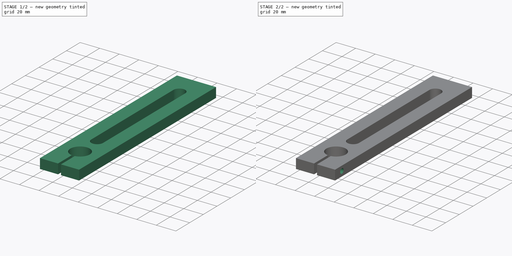
[diagram: build sequence overview — one tinted view per stage of 2, left to right]
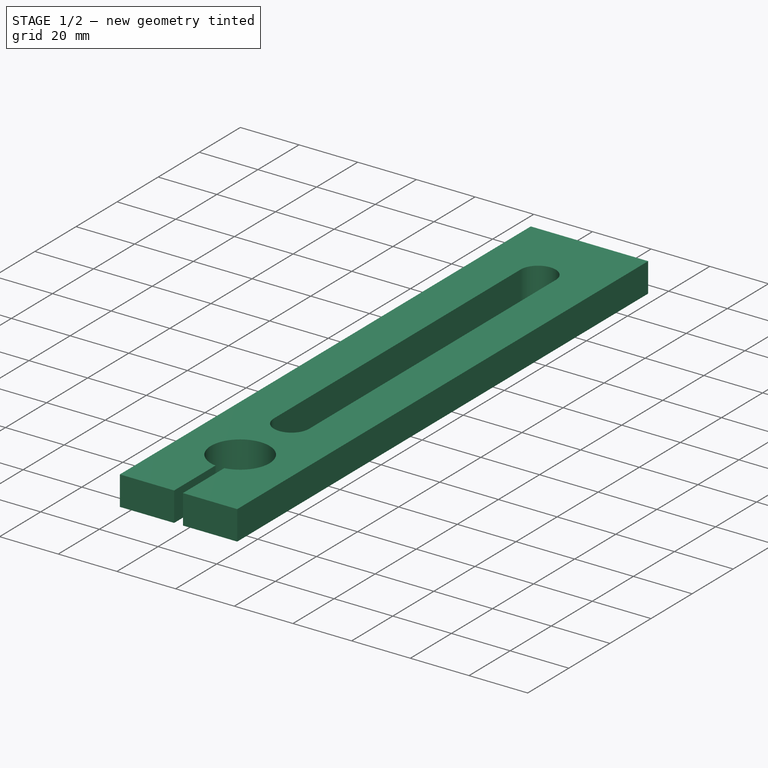
[diagram: stage 1 of 2 — iso view after this stage's code; geometry added in this stage tinted green]
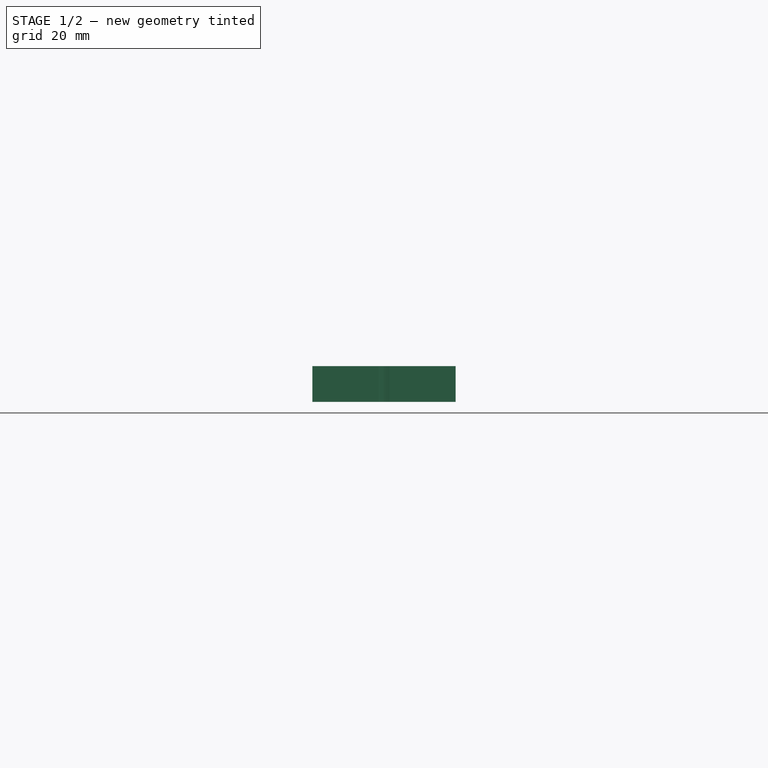
[diagram: stage 1 of 2 — front view after this stage's code; geometry added in this stage tinted green]
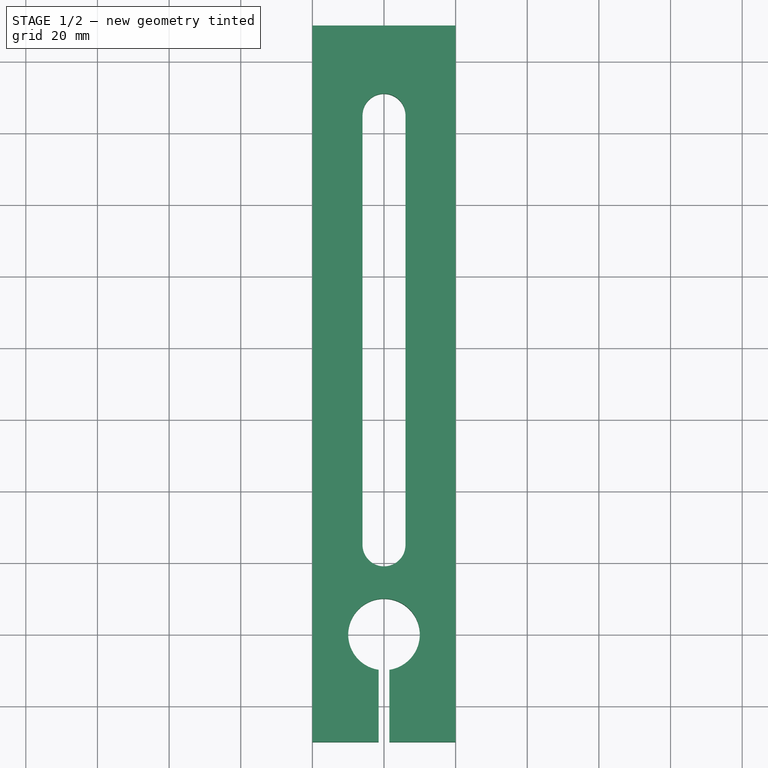
[diagram: stage 1 of 2 — top view after this stage's code; geometry added in this stage tinted green]
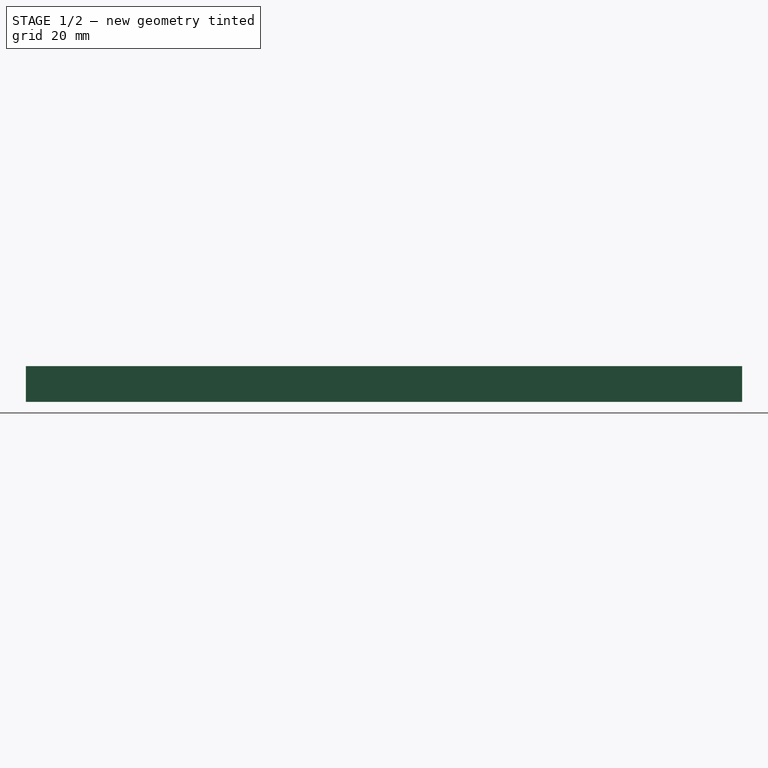
[diagram: stage 1 of 2 — right view after this stage's code; geometry added in this stage tinted green]
FCSTD DOCUMENT  (FreeCAD 0.21R33771 (Git))
Label: StaffaRegolabileIngranaggiFilettatura
License: All rights reserved
LicenseURL: http://en.wikipedia.org/wiki/All_rights_reserved
objects: Sketcher::SketchObject×2, PartDesign::Pad×1, PartDesign::Pocket×1, PartDesign::Body×1
note: 7 computed .brp shape members not serialized (recipe doc carries the construction recipe); baked Part::Feature solids carry a one-line shape summary decoded from their .brp

FEATURE [Sketcher::SketchObject] Sketch
  FullyConstrained = true
  MapMode = 5
  Support = -> [XY_Plane]
  sketch-geometry (12):
    g0: LineSegment StartX=-20 StartY=170 StartZ=0 EndX=20 EndY=170 EndZ=0
    g1: LineSegment StartX=20 StartY=170 StartZ=0 EndX=20 EndY=-30 EndZ=0
    g2: LineSegment StartX=20 StartY=-30 StartZ=0 EndX=1.5 EndY=-30 EndZ=0
    g3: LineSegment StartX=-20 StartY=-30 StartZ=0 EndX=-20 EndY=170 EndZ=0
    g4: ArcOfCircle CenterX=0 CenterY=0 CenterZ=0 NormalX=0 NormalY=0 NormalZ=1 AngleXU=0 Radius=10 StartAngle=4.86296 EndAngle=10.845
    g5: LineSegment StartX=-1.5 StartY=-9.88686 StartZ=0 EndX=-1.5 EndY=-30 EndZ=0
    g6: LineSegment StartX=1.5 StartY=-9.88686 StartZ=0 EndX=1.5 EndY=-30 EndZ=0
    g7: LineSegment StartX=-1.5 StartY=-30 StartZ=0 EndX=-20 EndY=-30 EndZ=0
    g8: ArcOfCircle CenterX=0 CenterY=145 CenterZ=0 NormalX=0 NormalY=0 NormalZ=1 AngleXU=0 Radius=6 StartAngle=6.28319 EndAngle=9.42478
    g9: ArcOfCircle CenterX=0 CenterY=25 CenterZ=0 NormalX=0 NormalY=0 NormalZ=1 AngleXU=0 Radius=6 StartAngle=3.14159 EndAngle=6.28319
    g10: LineSegment StartX=6 StartY=25 StartZ=0 EndX=6 EndY=145 EndZ=0
    g11: LineSegment StartX=-6 StartY=25 StartZ=0 EndX=-6 EndY=145 EndZ=0
  constraints (35):
    c: Coincident(g0,g1)
    c: Coincident(g1,g2)
    c: Coincident(g7,g3)
    c: Coincident(g3,g0)
    c: Horizontal(g0)
    c: Vertical(g1)
    c: Vertical(g3)
    c: DistanceX(g7,g2) = 40
    c: DistanceY(g3,g3) = 200
    c: Horizontal(g2)
    c: DistanceX(g7,g-1) = 20
    c: DistanceY(g7,g-1) = 30
    c: Coincident(g4,g-1)
    c: Radius(g4) = 10
    c: Vertical(g5)
    c: Vertical(g6)
    c: Coincident(g6,g4)
    c: Coincident(g5,g4)
    c: Coincident(g6,g2)
    c: Coincident(g5,g7)
    c: PointOnObject(g8,g-2)
    c: PointOnObject(g9,g-2)
    c: Vertical(g10)
    c: Vertical(g11)
    c: Radius(g9) = 6
    c: Tangent(g9,g10) = -1.5708
    c: Tangent(g9,g11) = 1.5708
    c: Coincident(g10,g8)
    c: Tangent(g11,g8) = 1.5708
    c: DistanceY(g9,g8) = 120
    c: DistanceY(g4,g9) = 25
    c: Equal(g7,g2)
    c: Equal(g6,g5)
    c: Horizontal(g7)
    c: DistanceX(g5,g2) = 3
FEATURE [PartDesign::Pad] Pad
  Direction = (0,0,1)
  Length = 10
  Length2 = 10
  Profile = -> Sketch
  ReferenceAxis = -> Sketch [N_Axis]
  Type = 0
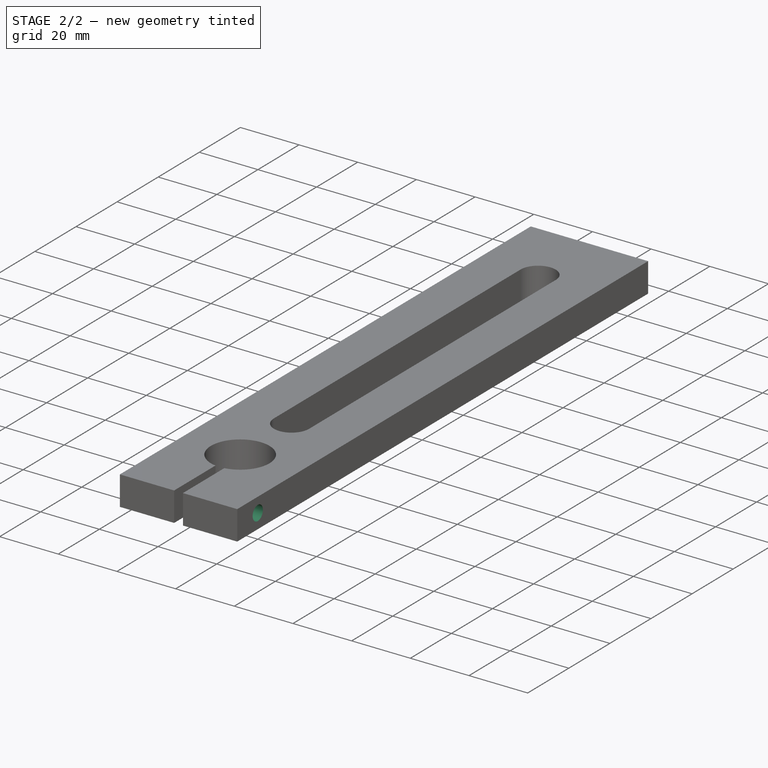
[diagram: stage 2 of 2 — iso view after this stage's code; geometry added in this stage tinted green]
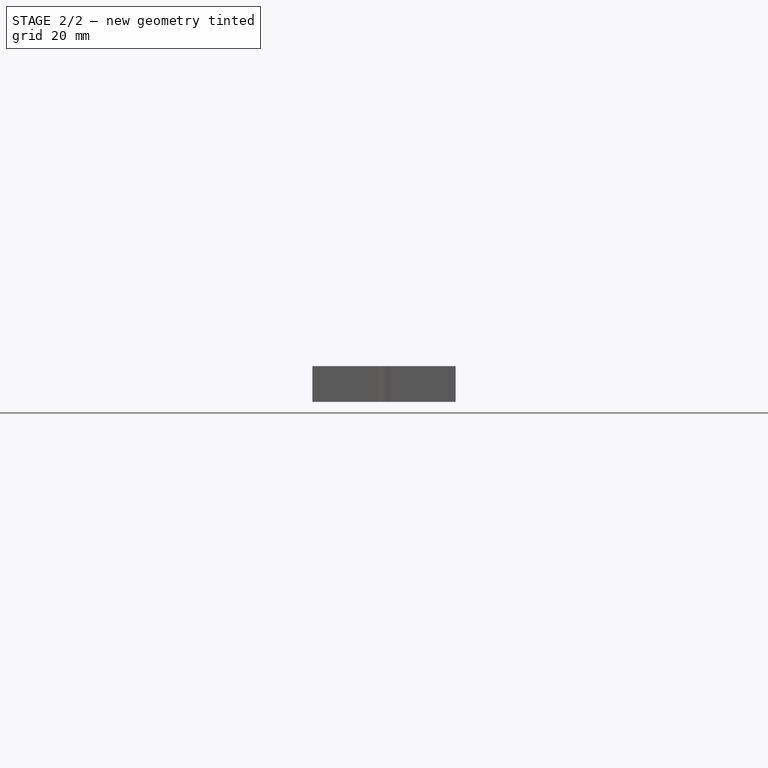
[diagram: stage 2 of 2 — front view after this stage's code; geometry added in this stage tinted green]
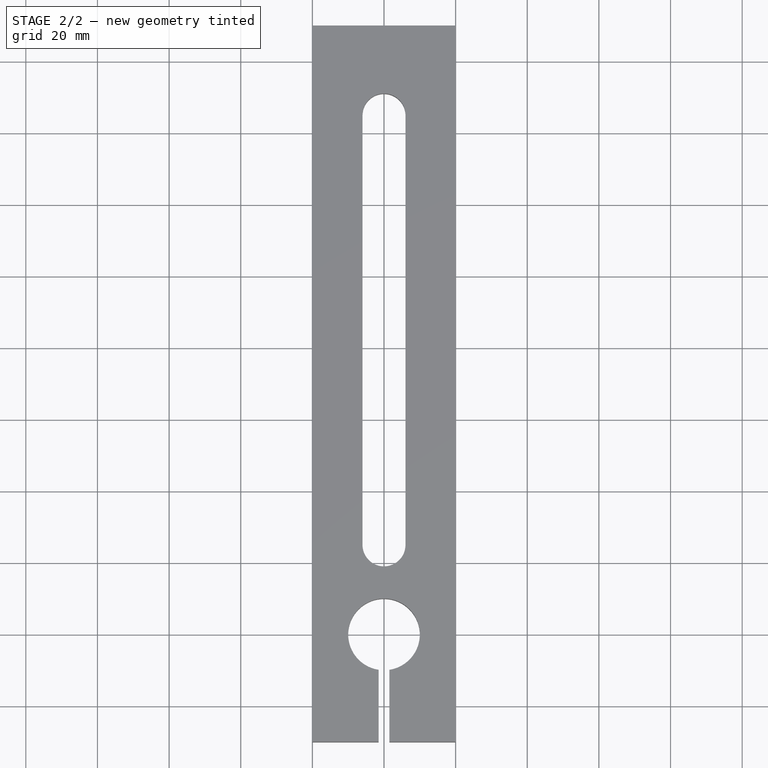
[diagram: stage 2 of 2 — top view after this stage's code; geometry added in this stage tinted green]
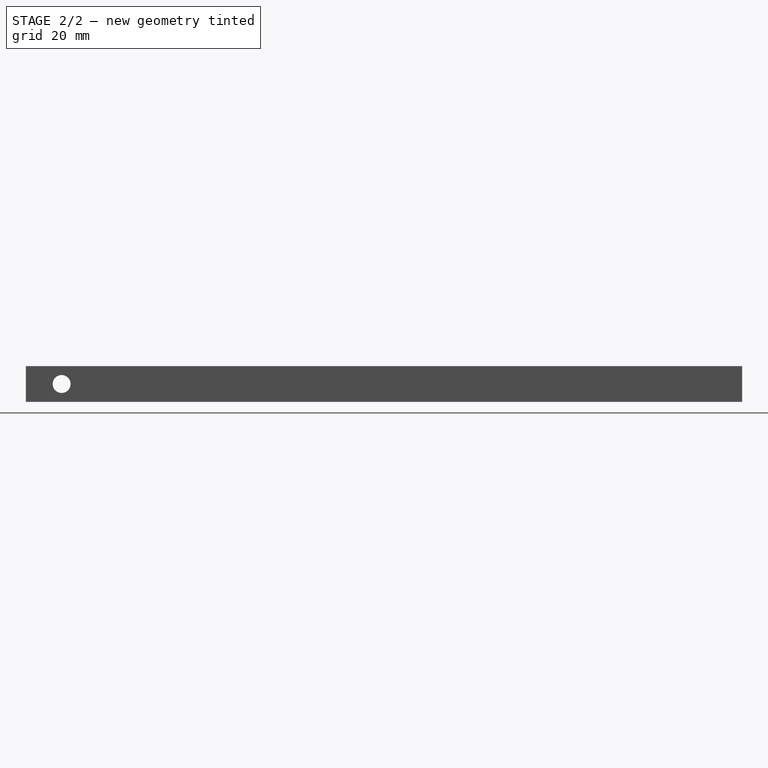
[diagram: stage 2 of 2 — right view after this stage's code; geometry added in this stage tinted green]
FEATURE [Sketcher::SketchObject] Sketch001
  FullyConstrained = false
  MapMode = 5
  Placement = pos=(-20,0,0) rot=(0.57735,-0.57735,-0.57735;2.0944rad)
  Support = -> [Pad]
  sketch-geometry (2):
    g0: LineSegment StartX=-5.78663 StartY=5 StartZ=0 EndX=46.8184 EndY=5 EndZ=0
    g1: Circle CenterX=20 CenterY=5 CenterZ=0 NormalX=0 NormalY=0 NormalZ=1 AngleXU=0 Radius=2.5
  constraints (5):
    c: Horizontal(g0)
    c: DistanceY(g-1,g0) = 5
    c: PointOnObject(g1,g0)
    c: Radius(g1) = 2.5
    c: DistanceX(g-1,g1) = 20
FEATURE [PartDesign::Pocket] Pocket
  BaseFeature = -> Pad
  Direction = (1,0,0)
  Length = 5
  Length2 = 5
  Profile = -> Sketch001
  ReferenceAxis = -> Sketch001 [N_Axis]
  Type = 1
FEATURE [PartDesign::Body] Body
  Group = -> [Sketch,Pad,Sketch001,Pocket]
  Origin = -> Origin
  Tip = -> Pocket
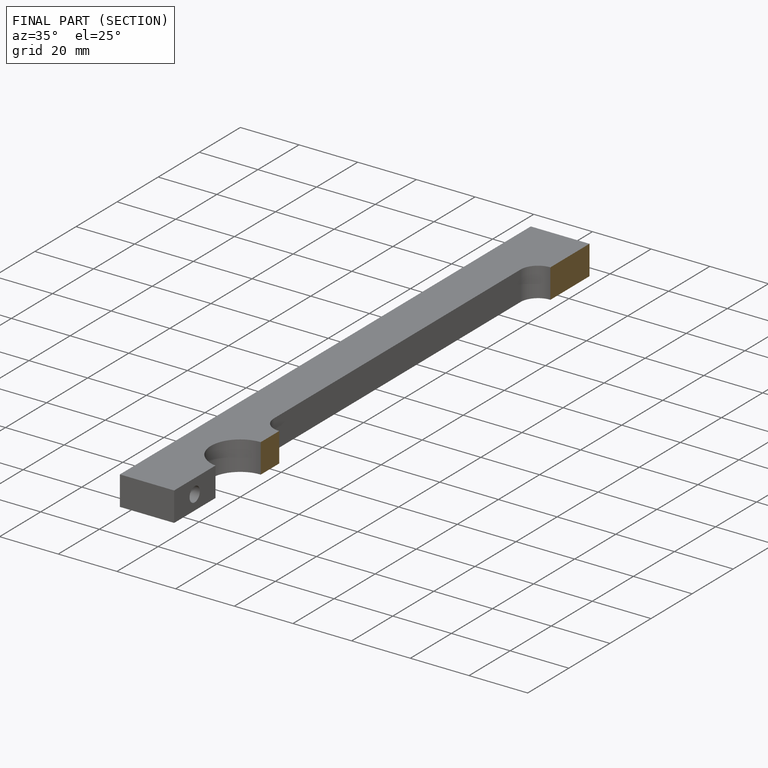
[diagram: finished part — half-section view (interior)]
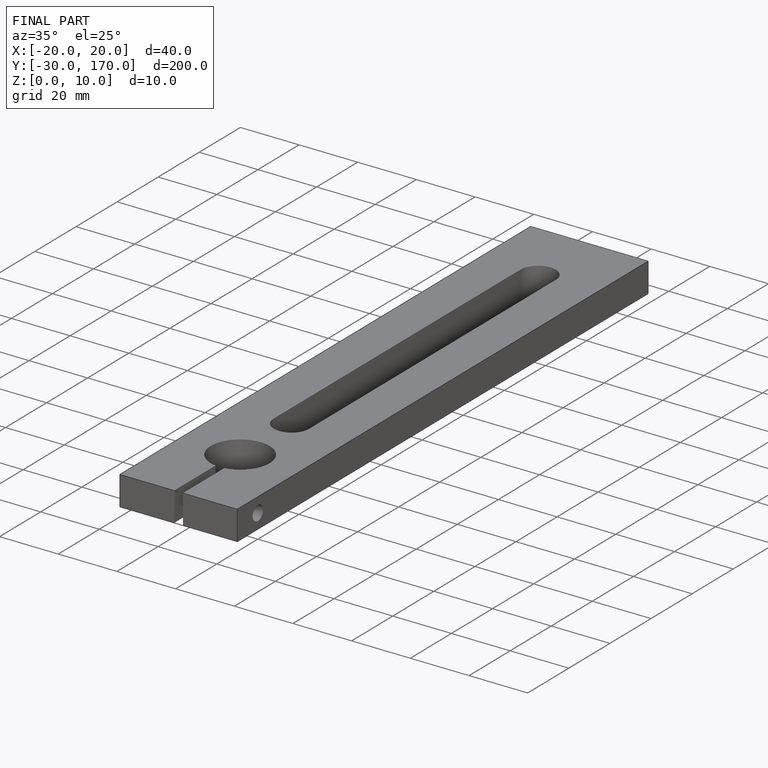
[diagram: finished part — iso view with bounding-box wireframe]
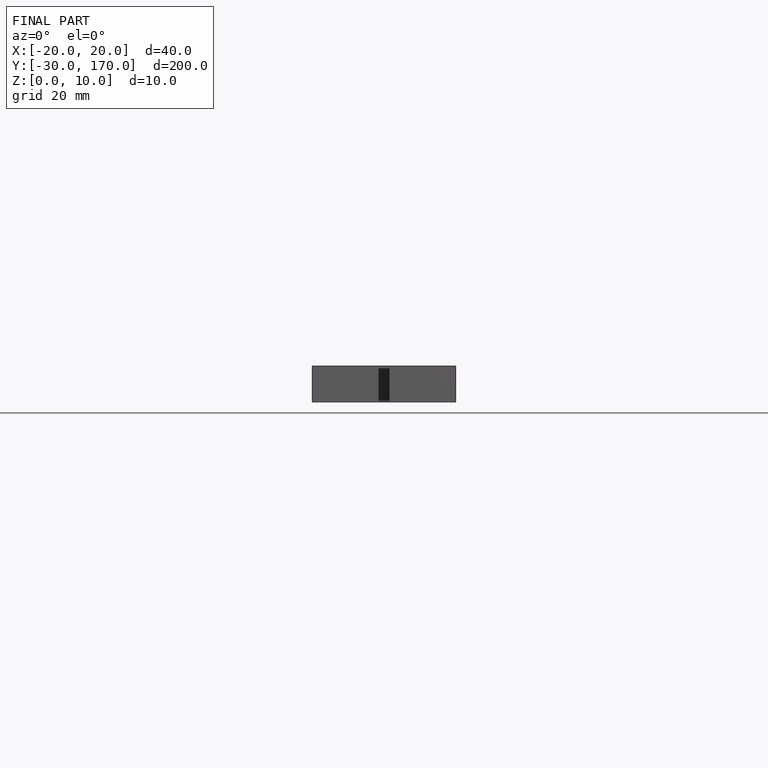
[diagram: finished part — front view with bounding-box wireframe]
